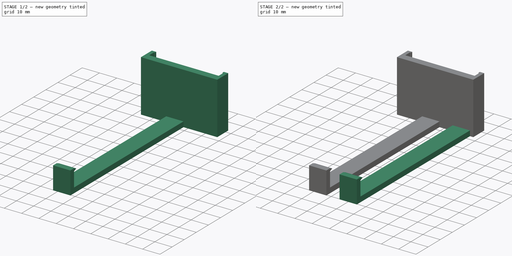
[diagram: build sequence overview — one tinted view per stage of 2, left to right]
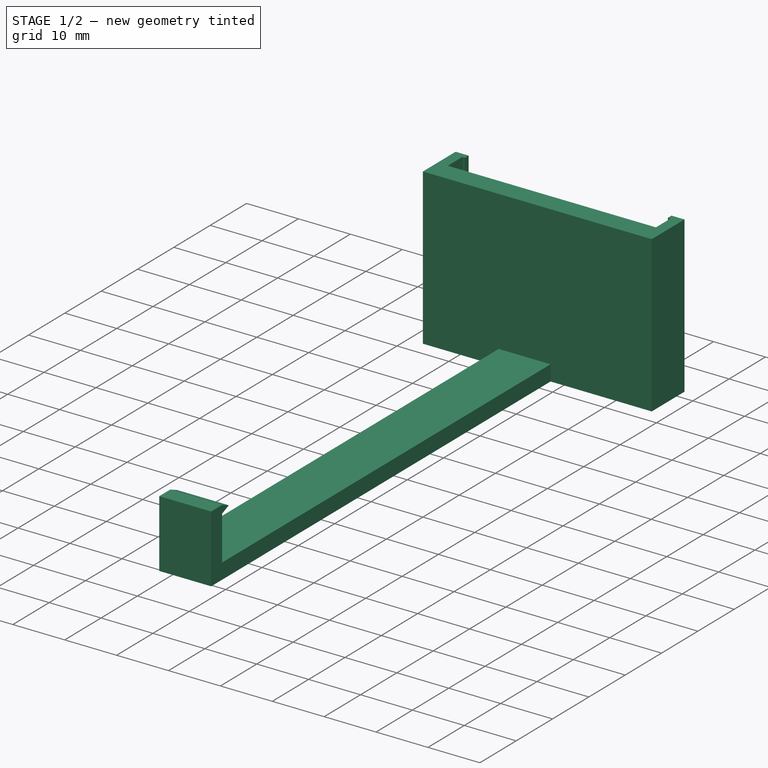
[diagram: stage 1 of 2 — iso view after this stage's code; geometry added in this stage tinted green]
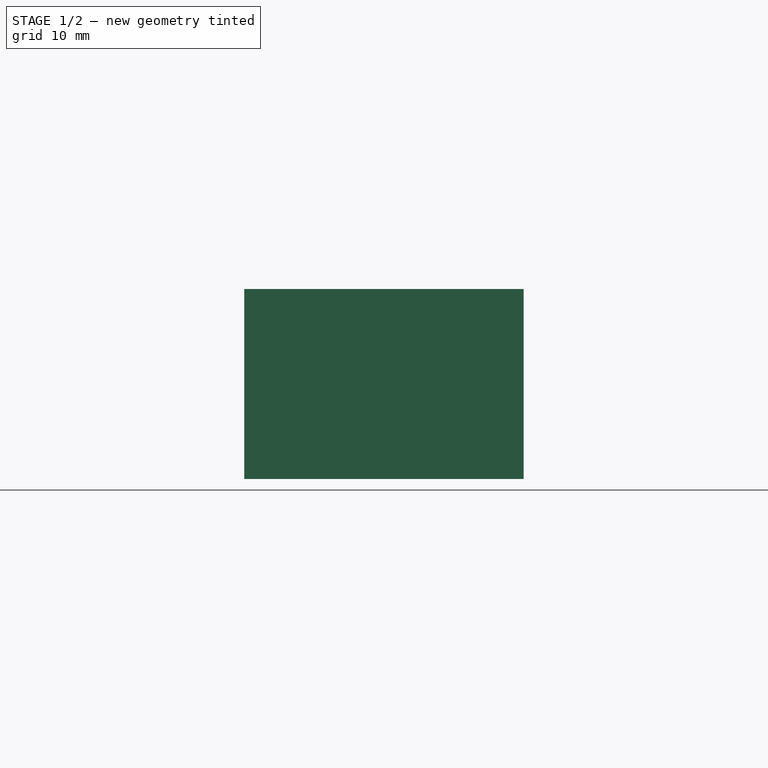
[diagram: stage 1 of 2 — front view after this stage's code; geometry added in this stage tinted green]
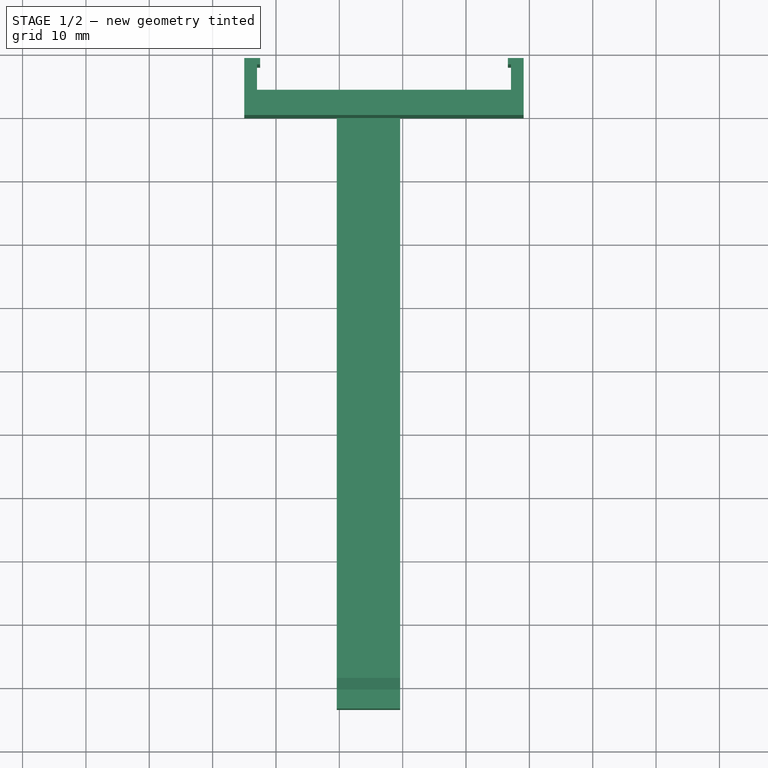
[diagram: stage 1 of 2 — top view after this stage's code; geometry added in this stage tinted green]
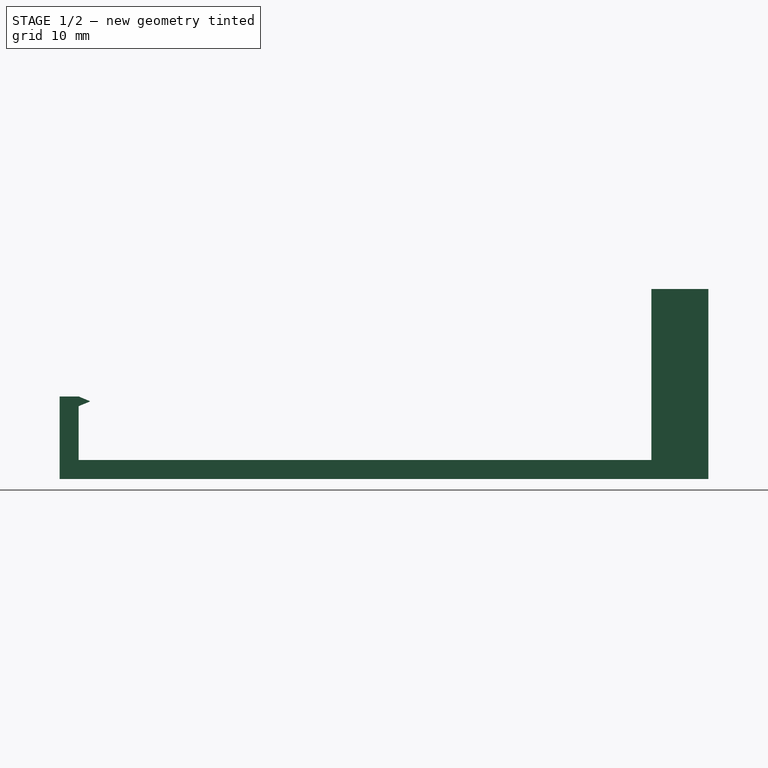
[diagram: stage 1 of 2 — right view after this stage's code; geometry added in this stage tinted green]
FCSTD DOCUMENT  (FreeCAD 0.22R35822 (Git))
Label: ender 3 v3 se mount
License: All rights reserved
LicenseURL: http://en.wikipedia.org/wiki/All_rights_reserved
objects: Sketcher::SketchObject×3, PartDesign::Pad×3, PartDesign::Body×1
note: 10 computed .brp shape members not serialized (recipe doc carries the construction recipe); baked Part::Feature solids carry a one-line shape summary decoded from their .brp

FEATURE [Sketcher::SketchObject] Sketch
  FullyConstrained = false
  MapMode = 5
  Support = -> [XY_Plane001]
  sketch-geometry (13):
    g0: LineSegment StartX=-4.99733 StartY=9 StartZ=0 EndX=-2.49733 EndY=9 EndZ=0
    g1: LineSegment StartX=-2.49733 StartY=8 StartZ=0 EndX=-2.49733 EndY=9 EndZ=0
    g2: LineSegment StartX=-2.49733 StartY=8 StartZ=0 EndX=-2.99733 EndY=8 EndZ=0
    g3: LineSegment StartX=-2.99733 StartY=8 StartZ=0 EndX=-2.99733 EndY=4 EndZ=0
    g4: LineSegment StartX=-2.99733 StartY=4 StartZ=0 EndX=37.1027 EndY=4 EndZ=0
    g5: LineSegment StartX=37.1027 StartY=4 StartZ=0 EndX=37.1027 EndY=8 EndZ=0
    g6: LineSegment StartX=37.1027 StartY=8 StartZ=0 EndX=36.6027 EndY=8 EndZ=0
    g7: LineSegment StartX=36.6027 StartY=8 StartZ=0 EndX=36.6027 EndY=9 EndZ=0
    g8: LineSegment StartX=36.6027 StartY=9 StartZ=0 EndX=39.1027 EndY=9 EndZ=0
    g9: LineSegment StartX=39.1027 StartY=9 StartZ=0 EndX=39.1027 EndY=0 EndZ=0
    g10: LineSegment StartX=-4.99733 StartY=9 StartZ=0 EndX=-4.99733 EndY=4 EndZ=0
    g11: LineSegment StartX=39.1027 StartY=0 StartZ=0 EndX=-4.99733 EndY=0 EndZ=0
    g12: LineSegment StartX=-4.99733 StartY=4 StartZ=0 EndX=-4.99733 EndY=0 EndZ=0
  constraints (38):
    c: Coincident(g2,g1)
    c: Coincident(g3,g2)
    c: Vertical(g3)
    c: Horizontal(g4)
    c: Coincident(g6,g5)
    c: Coincident(g7,g6)
    c: Vertical(g7)
    c: Coincident(g8,g7)
    c: Horizontal(g8)
    c: Coincident(g9,g8)
    c: Vertical(g9)
    c: Coincident(g1,g0)
    c: DistanceY(g5,g5) = 4
    c: DistanceY(g3,g3) = 4
    c: DistanceY(g9,g9) = 9
    c: DistanceX(g8,g8) = 2.5
    c: DistanceY(g7,g7) = 1
    c: DistanceX(g6,g6) = 0.5
    c: Parallel(g8,g6)
    c: Parallel(g9,g5)
    c: DistanceX(g2,g2) = 0.5
    c: DistanceY(g1,g1) = 1
    c: DistanceX(g0,g0) = 2.5
    c: Angle(g0,g1) = 1.5708
    c: Angle(g3,g2) = 1.5708
    c: Coincident(g4,g3)
    c: Coincident(g5,g4)
    c: Coincident(g10,g0)
    c: Parallel(g3,g10)
    c: Angle(g10,g0) = 1.5708
    c: Horizontal(g11)
    c: Coincident(g11,g9)
    c: DistanceY(g10,g10) = 5
    c: PointOnObject(g12,g-1)
    c: DistanceX(g4,g4) = 40.1
    c: Vertical(g12)
    c: Coincident(g11,g12)
    c: DistanceX(g11,g11) = 44.1  'ClampLength'
FEATURE [PartDesign::Pad] Pad
  Direction = (0,0,1)
  Length = 30
  Length2 = 10
  Profile = -> Sketch
  ReferenceAxis = -> Sketch [N_Axis]
  Type = 0
FEATURE [Sketcher::SketchObject] Sketch001
  AttachmentOffset = pos=(0,0,-29.5) rot=(0,0,1;0rad)
  ExternalGeometry = -> [Pad]
  FullyConstrained = true
  MapMode = 5
  Placement = pos=(9.60267,0,0) rot=(0.57735,0.57735,0.57735;2.0944rad)
  Support = -> [Pad]
  expr: Constraints[2] = Pad.Length
  sketch-geometry (9):
    g0: LineSegment StartX=0.1 StartY=30 StartZ=0 EndX=0.1 EndY=0 EndZ=0
    g1: LineSegment StartX=0.1 StartY=0 StartZ=0 EndX=0.1 EndY=3 EndZ=0
    g2: LineSegment StartX=0.1 StartY=3 StartZ=0 EndX=-90.4 EndY=3 EndZ=0
    g3: LineSegment StartX=-93.4 StartY=13.0307 StartZ=0 EndX=-93.4 EndY=0 EndZ=0
    g4: LineSegment StartX=-93.4 StartY=0 StartZ=0 EndX=0.1 EndY=0 EndZ=0
    g5: LineSegment StartX=-93.4 StartY=13.0307 StartZ=0 EndX=-90.4 EndY=13.0307 EndZ=0
    g6: LineSegment StartX=-90.4 StartY=11.5 StartZ=0 EndX=-90.4 EndY=3 EndZ=0
    g7: LineSegment StartX=-90.4 StartY=13.0307 StartZ=0 EndX=-88.5522 EndY=12.2654 EndZ=0
    g8: LineSegment StartX=-88.5522 StartY=12.2654 StartZ=0 EndX=-90.4 EndY=11.5 EndZ=0
  constraints (27):
    c: Vertical(g0)
    c: DistanceX(g-3,g0) = 0.1
    c: DistanceY(g0,g0) = 30
    c: DistanceY(g0,g-3) = 0
    c: Coincident(g1,g2)
    c: Coincident(g3,g4)
    c: Coincident(g4,g1)
    c: Vertical(g1)
    c: Vertical(g3)
    c: Horizontal(g2)
    c: Horizontal(g4)
    c: Coincident(g1,g0)
    c: Coincident(g3,g5)
    c: Horizontal(g5)
    c: Coincident(g6,g2)
    c: DistanceX(g5,g5) = 3
    c: Vertical(g6)
    c: DistanceX(g2,g2) = 90.5
    c: Coincident(g7,g5)
    c: Coincident(g6,g8)
    c: DistanceY(g6,g6) = 8.5
    c: Vertical(g5,g6)
    c: DistanceY(g3,g2) = 3
    c: Coincident(g8,g7)
    c: Angle(g7,g8) = 0.785398
    c: Distance(g7,g7) = 2
    c: Equal(g8,g7)
FEATURE [Sketcher::SketchObject] Sketch002
  AttachmentOffset = pos=(0,0,-11.9) rot=(0,0,1;0rad)
  ExternalGeometry = -> [Pad]
  FullyConstrained = true
  MapMode = 5
  Placement = pos=(27.2027,0,0) rot=(0.57735,0.57735,0.57735;2.0944rad)
  Support = -> [Pad]
  expr: Constraints[2] = Pad.Length
  sketch-geometry (9):
    g0: LineSegment StartX=0.1 StartY=30 StartZ=0 EndX=0.1 EndY=0 EndZ=0
    g1: LineSegment StartX=0.1 StartY=0 StartZ=0 EndX=0.1 EndY=3 EndZ=0
    g2: LineSegment StartX=0.1 StartY=3 StartZ=0 EndX=-90.4 EndY=3 EndZ=0
    g3: LineSegment StartX=-93.4 StartY=13.0307 StartZ=0 EndX=-93.4 EndY=0 EndZ=0
    g4: LineSegment StartX=-93.4 StartY=0 StartZ=0 EndX=0.1 EndY=0 EndZ=0
    g5: LineSegment StartX=-93.4 StartY=13.0307 StartZ=0 EndX=-90.4 EndY=13.0307 EndZ=0
    g6: LineSegment StartX=-90.4 StartY=11.5 StartZ=0 EndX=-90.4 EndY=3 EndZ=0
    g7: LineSegment StartX=-90.4 StartY=13.0307 StartZ=0 EndX=-88.5522 EndY=12.2654 EndZ=0
    g8: LineSegment StartX=-88.5522 StartY=12.2654 StartZ=0 EndX=-90.4 EndY=11.5 EndZ=0
  constraints (27):
    c: Vertical(g0)
    c: DistanceX(g-3,g0) = 0.1
    c: DistanceY(g0,g0) = 30
    c: DistanceY(g0,g-3) = 0
    c: Coincident(g1,g2)
    c: Coincident(g3,g4)
    c: Coincident(g4,g1)
    c: Vertical(g1)
    c: Vertical(g3)
    c: Horizontal(g2)
    c: Horizontal(g4)
    c: Coincident(g1,g0)
    c: Coincident(g3,g5)
    c: Horizontal(g5)
    c: Coincident(g6,g2)
    c: DistanceX(g5,g5) = 3
    c: Vertical(g6)
    c: DistanceX(g2,g2) = 90.5
    c: Coincident(g7,g5)
    c: Coincident(g6,g8)
    c: DistanceY(g6,g6) = 8.5
    c: Vertical(g5,g6)
    c: DistanceY(g3,g2) = 3
    c: Coincident(g8,g7)
    c: Angle(g7,g8) = 0.785398
    c: Distance(g7,g7) = 2
    c: Equal(g8,g7)
FEATURE [PartDesign::Pad] Pad001
  BaseFeature = -> Pad
  Direction = (1,0,0)
  Length = 10
  Length2 = 10
  Profile = -> Sketch001
  ReferenceAxis = -> Sketch001 [N_Axis]
  Type = 0
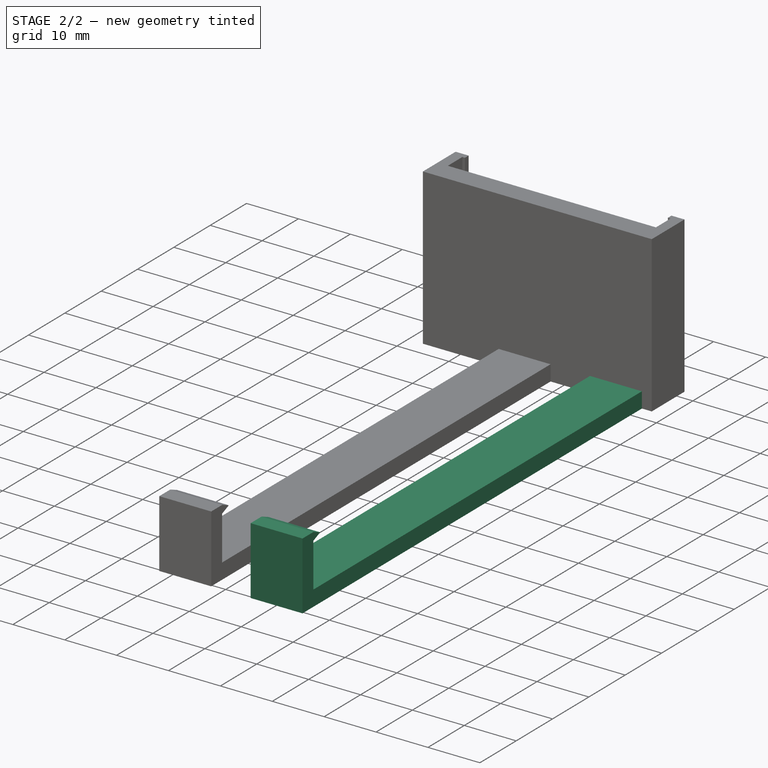
[diagram: stage 2 of 2 — iso view after this stage's code; geometry added in this stage tinted green]
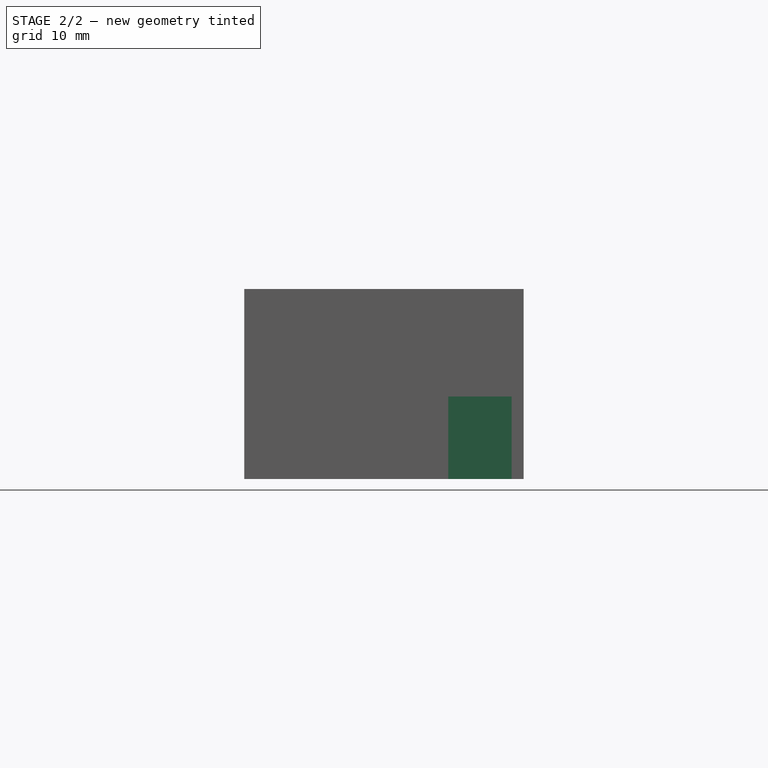
[diagram: stage 2 of 2 — front view after this stage's code; geometry added in this stage tinted green]
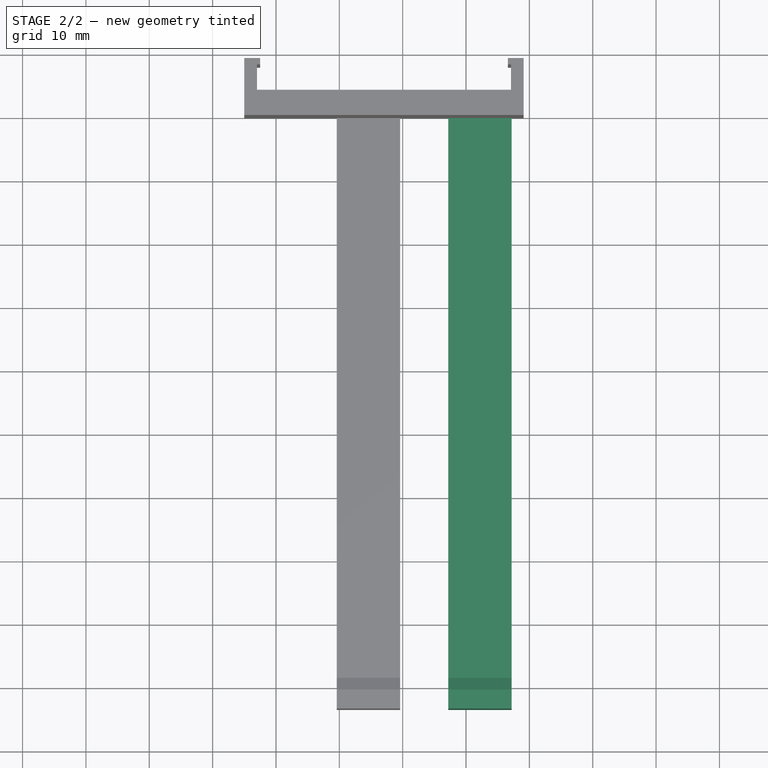
[diagram: stage 2 of 2 — top view after this stage's code; geometry added in this stage tinted green]
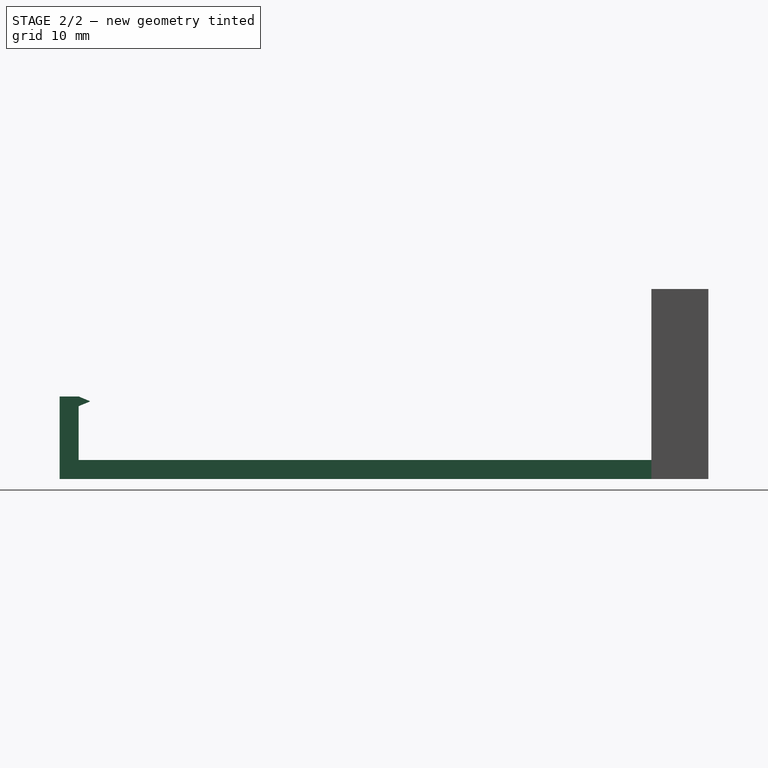
[diagram: stage 2 of 2 — right view after this stage's code; geometry added in this stage tinted green]
FEATURE [PartDesign::Pad] Pad002
  BaseFeature = -> Pad001
  Direction = (1,0,0)
  Length = 10
  Length2 = 10
  Profile = -> Sketch002
  ReferenceAxis = -> Sketch002 [N_Axis]
  Type = 0
FEATURE [PartDesign::Body] Body
  Group = -> [Sketch,Pad,Sketch001,Sketch002,Pad001,Pad002]
  Origin = -> Origin
  Tip = -> Pad002
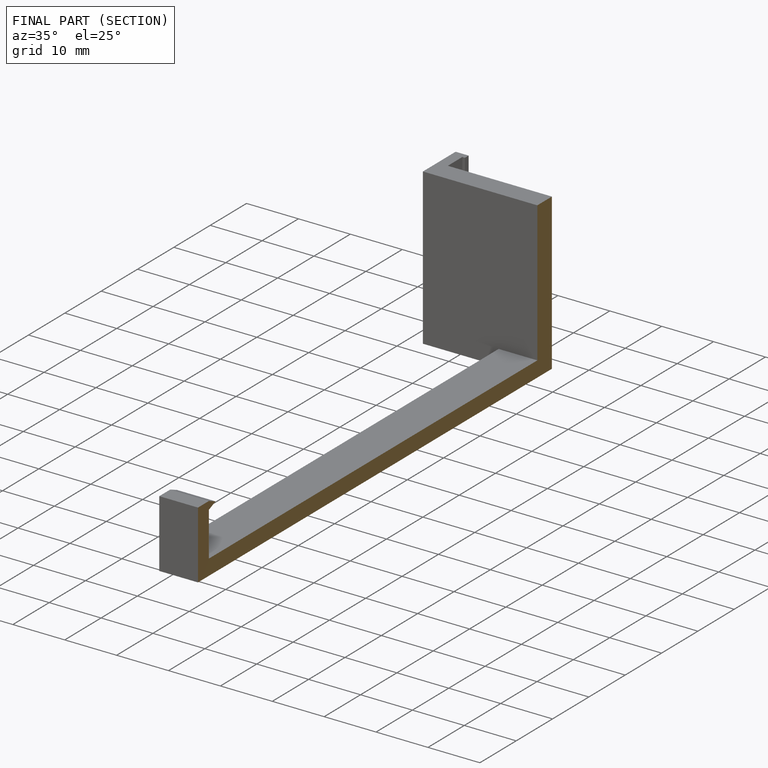
[diagram: finished part — half-section view (interior)]
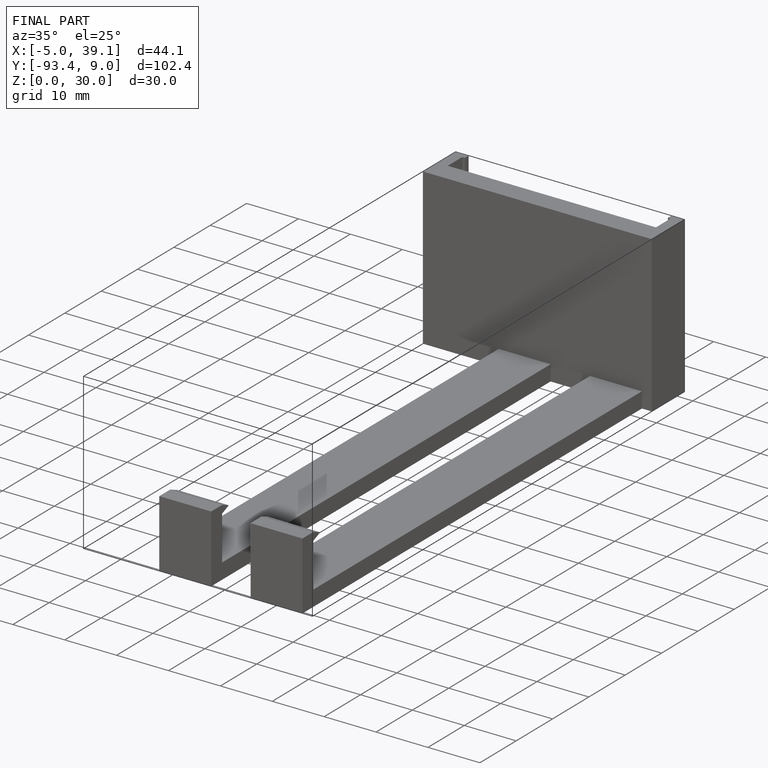
[diagram: finished part — iso view with bounding-box wireframe]
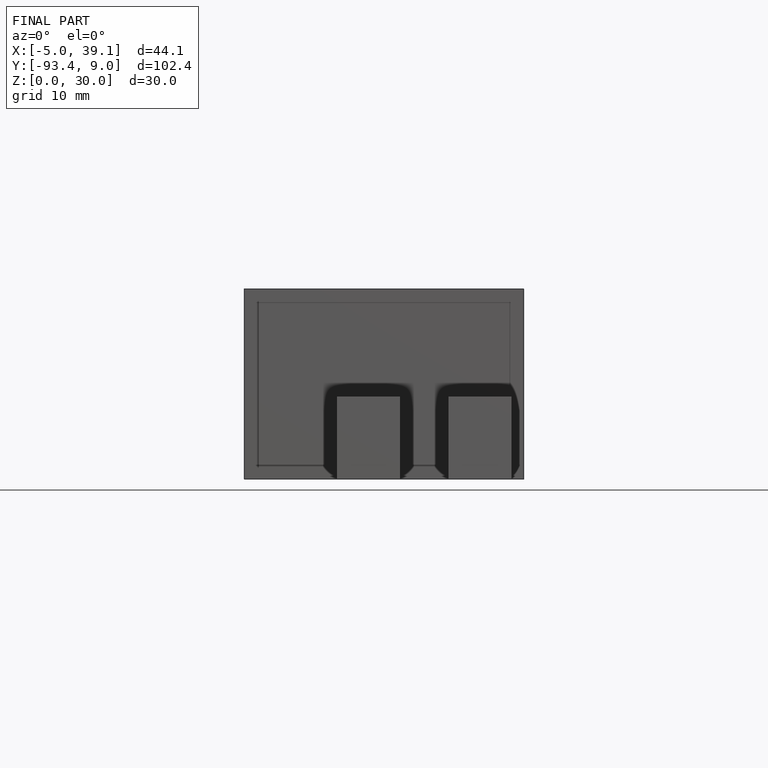
[diagram: finished part — front view with bounding-box wireframe]
